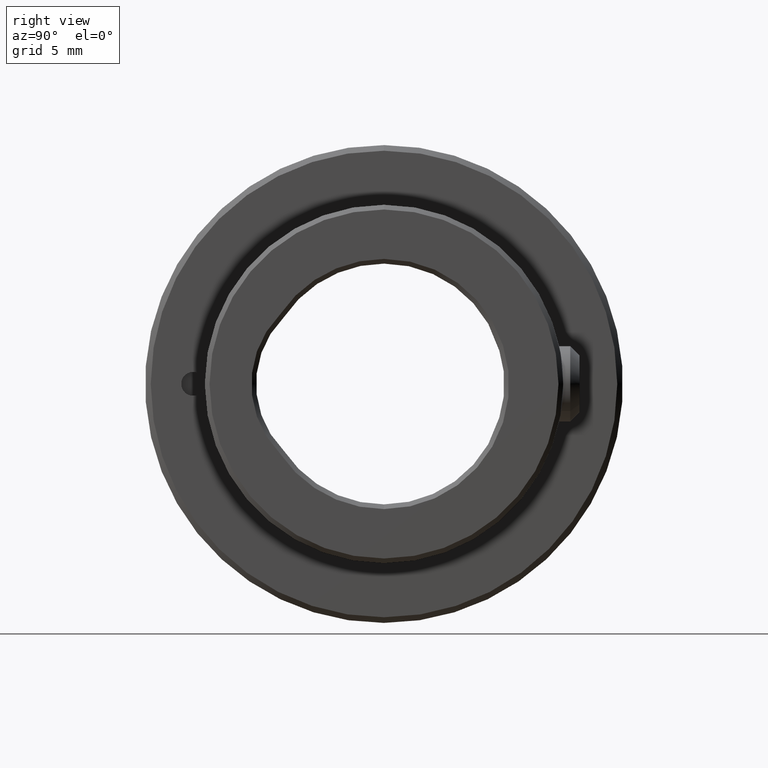
[diagram: clean part render]
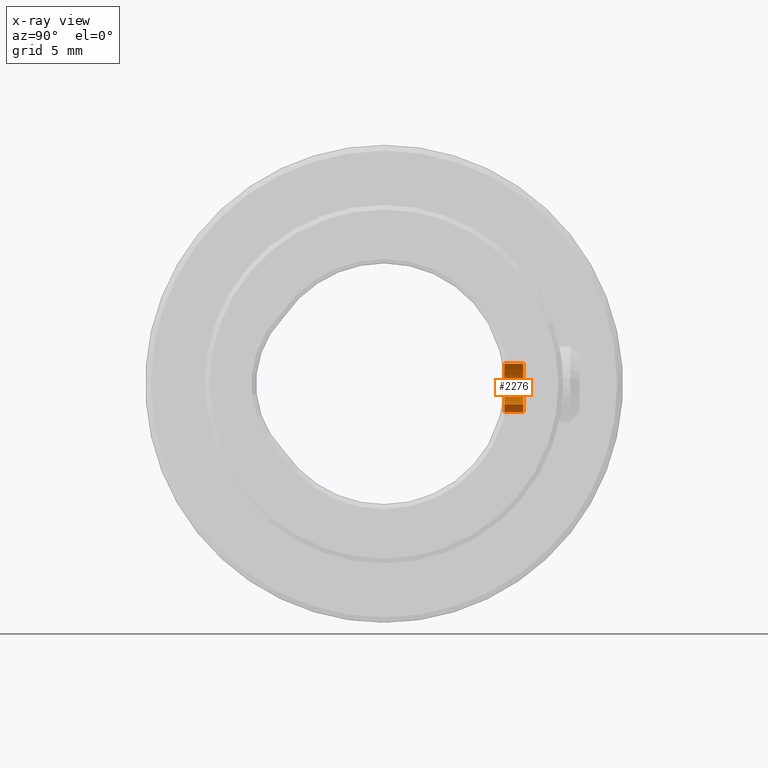
[diagram: x-ray — body ghosted, one internal face saturated and labeled with its STEP entity id]
A machine part, right view, then the same camera in x-ray: the body is ghosted and one INTERNAL B-rep face — a face not visible from any outside direction — is saturated and labeled: STEP entity #2276.
In plain terms, the highlighted cylindrical surface (edge-blend (fillet) strip) has radius 1.5 mm, axis along (-0, 1, 0).
Its self-contained STEP definition (entity closure, byte-faithful):
#164 = VECTOR ( 'NONE', #1037, 1000.000000000000000 ) ;
#240 = VECTOR ( 'NONE', #2441, 1000.000000000000000 ) ;
#298 = CARTESIAN_POINT ( 'NONE',  ( 0.000000000000000000, -1.000000000000000000, 1.500000000000000222 ) ) ;
#323 = CIRCLE ( 'NONE', #3180, 1.500000000000000222 ) ;
#393 = VERTEX_POINT ( 'NONE', #1032 ) ;
#499 = EDGE_CURVE ( 'NONE', #1739, #3965, #2465, .T. ) ;
#600 = CARTESIAN_POINT ( 'NONE',  ( 0.000000000000000000, -1.000000000000000000, 0.000000000000000000 ) ) ;
#962 = DIRECTION ( 'NONE',  ( 0.000000000000000000, -1.000000000000000000, 0.000000000000000000 ) ) ;
#1016 = DIRECTION ( 'NONE',  ( -0.000000000000000000, 1.000000000000000000, -0.000000000000000000 ) ) ;
#1032 = CARTESIAN_POINT ( 'NONE',  ( 1.836970198721030181E-16, -1.000000000000000000, -1.500000000000000222 ) ) ;
#1037 = DIRECTION ( 'NONE',  ( -0.000000000000000000, 1.000000000000000000, -0.000000000000000000 ) ) ;
#1124 = CARTESIAN_POINT ( 'NONE',  ( 0.000000000000000000, 0.000000000000000000, 1.499999999999997780 ) ) ;
#1322 = CARTESIAN_POINT ( 'NONE',  ( 0.000000000000000000, 0.000000000000000000, 0.000000000000000000 ) ) ;
#1463 = ORIENTED_EDGE ( 'NONE', *, *, #499, .T. ) ;
#1618 = AXIS2_PLACEMENT_3D ( 'NONE', #600, #1016, #2464 ) ;
#1739 = VERTEX_POINT ( 'NONE', #1124 ) ;
#1922 = AXIS2_PLACEMENT_3D ( 'NONE', #1322, #2485, #3942 ) ;
#2276 = ADVANCED_FACE ( 'NONE', ( #3909 ), #3633, .T. ) ;
#2420 = EDGE_CURVE ( 'NONE', #3322, #1739, #4449, .T. ) ;
#2441 = DIRECTION ( 'NONE',  ( -0.000000000000000000, 1.000000000000000000, -0.000000000000000000 ) ) ;
#2464 = DIRECTION ( 'NONE',  ( 0.000000000000000000, 0.000000000000000000, 1.000000000000000000 ) ) ;
#2465 = CIRCLE ( 'NONE', #1922, 1.499999999999997780 ) ;
#2485 = DIRECTION ( 'NONE',  ( -0.000000000000000000, -1.000000000000000000, -0.000000000000000000 ) ) ;
#2492 = CARTESIAN_POINT ( 'NONE',  ( 1.836970198721030181E-16, -1.000000000000000000, -1.500000000000000222 ) ) ;
#2963 = CARTESIAN_POINT ( 'NONE',  ( 0.000000000000000000, -1.000000000000000000, 1.500000000000000222 ) ) ;
#2977 = CARTESIAN_POINT ( 'NONE',  ( 2.143131898507866818E-16, 0.000000000000000000, -1.499999999999997780 ) ) ;
#3069 = EDGE_LOOP ( 'NONE', ( #3349, #4115, #3978, #1463 ) ) ;
#3138 = EDGE_CURVE ( 'NONE', #393, #3965, #4735, .T. ) ;
#3165 = EDGE_CURVE ( 'NONE', #3322, #393, #323, .T. ) ;
#3180 = AXIS2_PLACEMENT_3D ( 'NONE', #3946, #962, #4395 ) ;
#3322 = VERTEX_POINT ( 'NONE', #2963 ) ;
#3349 = ORIENTED_EDGE ( 'NONE', *, *, #3138, .F. ) ;
#3633 = CYLINDRICAL_SURFACE ( 'NONE', #1618, 1.500000000000000222 ) ;
#3909 = FACE_OUTER_BOUND ( 'NONE', #3069, .T. ) ;
#3942 = DIRECTION ( 'NONE',  ( 0.000000000000000000, 0.000000000000000000, 1.000000000000000000 ) ) ;
#3946 = CARTESIAN_POINT ( 'NONE',  ( 0.000000000000000000, -1.000000000000000000, 0.000000000000000000 ) ) ;
#3965 = VERTEX_POINT ( 'NONE', #2977 ) ;
#3978 = ORIENTED_EDGE ( 'NONE', *, *, #2420, .T. ) ;
#4115 = ORIENTED_EDGE ( 'NONE', *, *, #3165, .F. ) ;
#4395 = DIRECTION ( 'NONE',  ( 0.000000000000000000, 0.000000000000000000, -1.000000000000000000 ) ) ;
#4449 = LINE ( 'NONE', #298, #240 ) ;
#4735 = LINE ( 'NONE', #2492, #164 ) ;